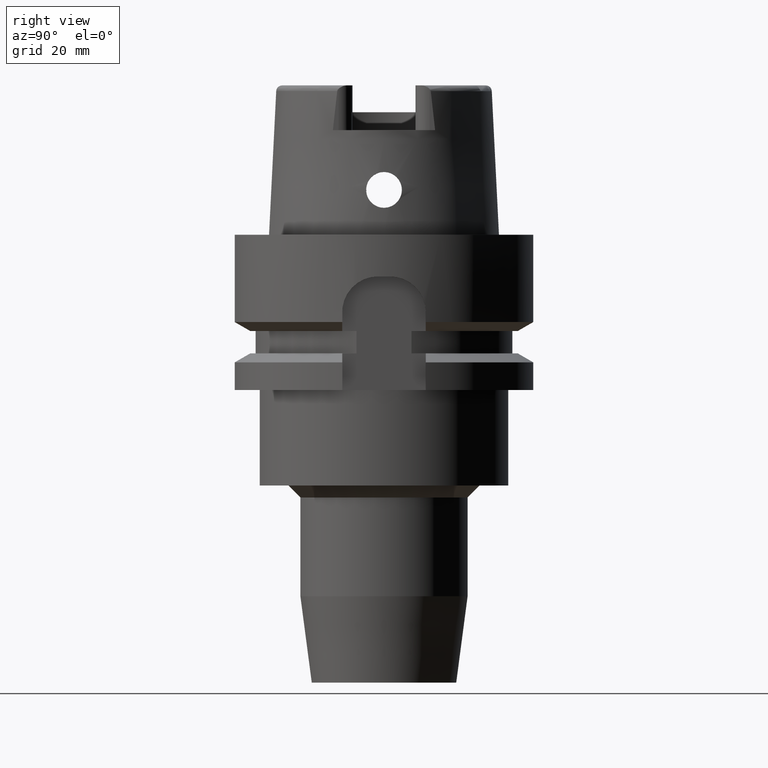
[diagram: clean part render]
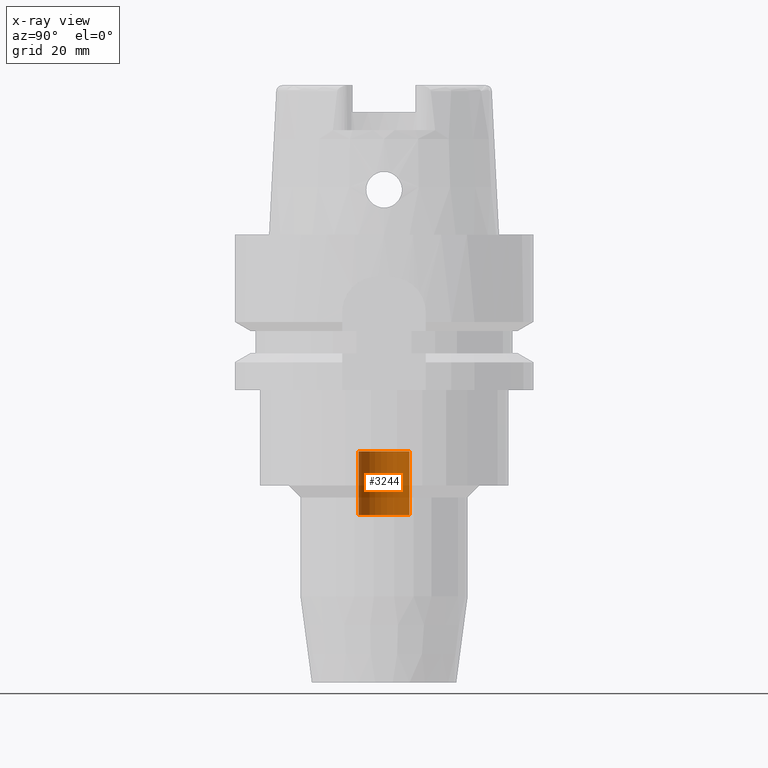
[diagram: x-ray — body ghosted, one internal face saturated and labeled with its STEP entity id]
A machine part, right view, then the same camera in x-ray: the body is ghosted and one INTERNAL B-rep face — a face not visible from any outside direction — is saturated and labeled: STEP entity #3244.
In plain terms, the highlighted cylindrical surface (edge-blend (fillet) strip) has radius 4.25 mm, axis along (0, 0, 1).
Its self-contained STEP definition (entity closure, byte-faithful):
#915=CARTESIAN_POINT('',(0.E0,0.E0,-3.63E1));
#916=DIRECTION('',(0.E0,0.E0,1.E0));
#917=DIRECTION('',(0.E0,1.E0,0.E0));
#918=AXIS2_PLACEMENT_3D('',#915,#916,#917);
#939=DIRECTION('',(0.E0,0.E0,1.E0));
#940=VECTOR('',#939,1.07E1);
#941=CARTESIAN_POINT('',(0.E0,4.25E0,-4.7E1));
#942=LINE('',#941,#940);
#946=DIRECTION('',(0.E0,0.E0,1.E0));
#947=VECTOR('',#946,1.07E1);
#948=CARTESIAN_POINT('',(0.E0,-4.25E0,-4.7E1));
#949=LINE('',#948,#947);
#953=CARTESIAN_POINT('',(0.E0,0.E0,-4.7E1));
#954=DIRECTION('',(0.E0,0.E0,-1.E0));
#955=DIRECTION('',(0.E0,-1.E0,0.E0));
#956=AXIS2_PLACEMENT_3D('',#953,#954,#955);
#2393=CARTESIAN_POINT('',(0.E0,-4.25E0,-3.63E1));
#2394=CARTESIAN_POINT('',(0.E0,4.25E0,-3.63E1));
#2395=VERTEX_POINT('',#2393);
#2396=VERTEX_POINT('',#2394);
#2397=CARTESIAN_POINT('',(0.E0,4.25E0,-4.7E1));
#2398=VERTEX_POINT('',#2397);
#2399=CARTESIAN_POINT('',(0.E0,-4.25E0,-4.7E1));
#2400=VERTEX_POINT('',#2399);
#3232=CARTESIAN_POINT('',(0.E0,0.E0,-8.E1));
#3233=DIRECTION('',(0.E0,0.E0,1.E0));
#3234=DIRECTION('',(0.E0,1.E0,0.E0));
#3235=AXIS2_PLACEMENT_3D('',#3232,#3233,#3234);
#3236=CYLINDRICAL_SURFACE('',#3235,4.25E0);
#3237=ORIENTED_EDGE('',*,*,#3222,.F.);
#3239=ORIENTED_EDGE('',*,*,#3238,.F.);
#3240=ORIENTED_EDGE('',*,*,#3225,.T.);
#3241=ORIENTED_EDGE('',*,*,#3208,.F.);
#3242=EDGE_LOOP('',(#3237,#3239,#3240,#3241));
#3243=FACE_OUTER_BOUND('',#3242,.F.);
#919=CIRCLE('',#918,4.25E0);
#957=CIRCLE('',#956,4.25E0);
#3208=EDGE_CURVE('',#2396,#2395,#919,.T.);
#3222=EDGE_CURVE('',#2398,#2396,#942,.T.);
#3225=EDGE_CURVE('',#2400,#2395,#949,.T.);
#3238=EDGE_CURVE('',#2400,#2398,#957,.T.);
#3244=ADVANCED_FACE('',(#3243),#3236,.F.);